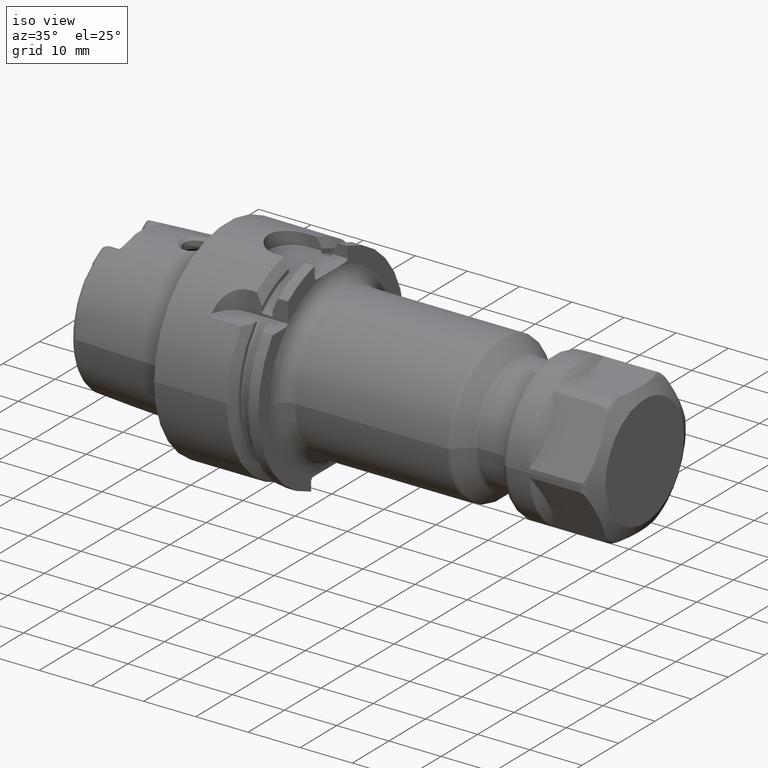
[diagram: clean part render]
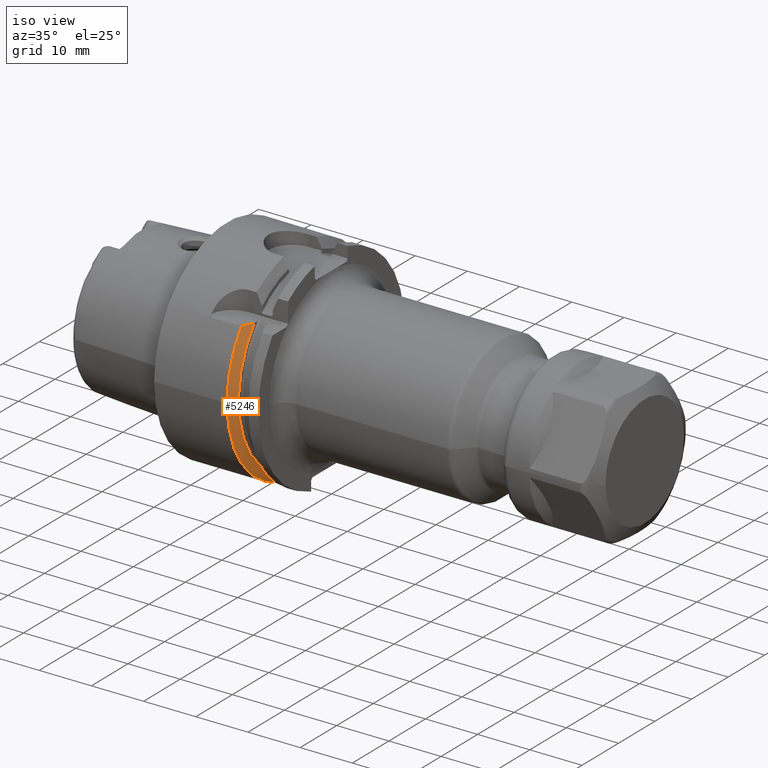
[diagram: same view with one face highlighted and labeled with its STEP entity id]
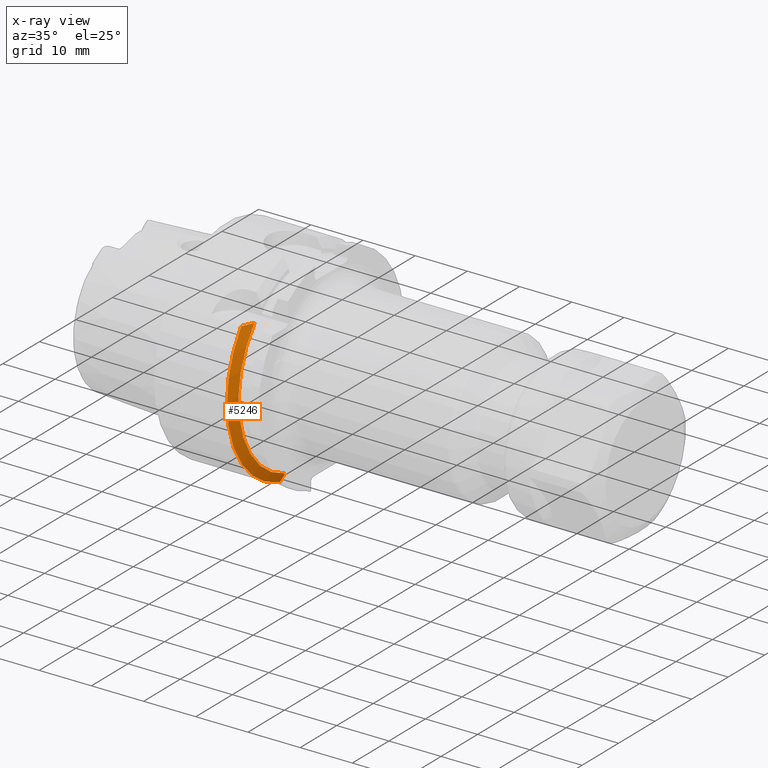
[diagram: x-ray of the same camera — body ghosted, the highlighted face saturated]
A machine part, iso view. The second image highlights one B-rep face of the part: STEP entity #5246.
The next image is the same camera in x-ray: the body ghosted, the highlighted face saturated — about 0% of this face is hidden behind the body in this view.
In plain terms, the highlighted conical surface has half-angle 60 deg.
Its self-contained STEP definition (entity closure, byte-faithful):
#954=CARTESIAN_POINT('',(1.396484030111E1,0.E0,0.E0));
#955=DIRECTION('',(1.E0,0.E0,0.E0));
#956=DIRECTION('',(0.E0,-8.055704500539E-1,5.925E-1));
#957=AXIS2_PLACEMENT_3D('',#954,#955,#956);
#1075=CARTESIAN_POINT('',(1.396484030111E1,0.E0,0.E0));
#1076=DIRECTION('',(1.E0,0.E0,0.E0));
#1077=DIRECTION('',(0.E0,-1.E0,0.E0));
#1078=AXIS2_PLACEMENT_3D('',#1075,#1076,#1077);
#1776=CARTESIAN_POINT('',(1.49625E1,-1.390839973320E1,1.185E1));
#1777=CARTESIAN_POINT('',(1.486171293392E1,-1.413773688651E1,1.185E1));
#1778=CARTESIAN_POINT('',(1.465350504648E1,-1.460672643476E1,1.185E1));
#1779=CARTESIAN_POINT('',(1.432145194433E1,-1.534021584423E1,1.185E1));
#1780=CARTESIAN_POINT('',(1.408602923523E1,-1.585084160911E1,1.185E1));
#1781=CARTESIAN_POINT('',(1.396484030111E1,-1.611140900108E1,1.185E1));
#1828=CARTESIAN_POINT('',(1.49625E1,0.E0,0.E0));
#1829=DIRECTION('',(1.E0,0.E0,0.E0));
#1830=DIRECTION('',(0.E0,-7.611863872709E-1,6.485331786682E-1));
#1831=AXIS2_PLACEMENT_3D('',#1828,#1829,#1830);
#1941=CARTESIAN_POINT('',(1.49625E1,-5.5175E0,-1.741904925329E1));
#1942=CARTESIAN_POINT('',(1.485605992557E1,-5.5175E0,-1.761243635328E1));
#1943=CARTESIAN_POINT('',(1.464023565105E1,-5.5175E0,-1.800397218698E1));
#1944=CARTESIAN_POINT('',(1.430775508931E1,-5.5175E0,-1.860543234989E1));
#1945=CARTESIAN_POINT('',(1.408013059396E1,-5.5175E0,-1.901611969665E1));
#1946=CARTESIAN_POINT('',(1.396484030111E1,-5.5175E0,-1.922387041545E1));
#2985=CARTESIAN_POINT('',(1.49625E1,-5.5175E0,-1.741904925329E1));
#2987=VERTEX_POINT('',#2985);
#2993=VERTEX_POINT('',#1946);
#3038=CARTESIAN_POINT('',(1.49625E1,-1.390839973320E1,1.185E1));
#3040=VERTEX_POINT('',#3038);
#3048=VERTEX_POINT('',#1781);
#3147=CARTESIAN_POINT('',(1.396484030111E1,-2.E1,0.E0));
#3148=VERTEX_POINT('',#3147);
#5233=CARTESIAN_POINT('',(1.446367015055E1,0.E0,0.E0));
#5234=DIRECTION('',(-1.E0,0.E0,0.E0));
#5235=DIRECTION('',(0.E0,1.E0,0.E0));
#5236=AXIS2_PLACEMENT_3D('',#5233,#5234,#5235);
#5237=CONICAL_SURFACE('',#5236,1.913600135643E1,6.E1);
#5238=ORIENTED_EDGE('',*,*,#4602,.T.);
#5240=ORIENTED_EDGE('',*,*,#5239,.T.);
#5241=ORIENTED_EDGE('',*,*,#4404,.F.);
#5242=ORIENTED_EDGE('',*,*,#4302,.F.);
#5243=ORIENTED_EDGE('',*,*,#5202,.F.);
#5244=EDGE_LOOP('',(#5238,#5240,#5241,#5242,#5243));
#5245=FACE_OUTER_BOUND('',#5244,.F.);
#5246=ADVANCED_FACE('',(#5245),#5237,.T.);
#958=CIRCLE('',#957,2.E1);
#1079=CIRCLE('',#1078,2.E1);
#1782=B_SPLINE_CURVE_WITH_KNOTS('',3,(#1776,#1777,#1778,#1779,#1780,#1781),
.UNSPECIFIED.,.F.,.F.,(4,1,1,4),(0.E0,3.333333333333E-1,6.666666666667E-1,1.E0),
.UNSPECIFIED.);
#1832=CIRCLE('',#1831,1.827200271285E1);
#1947=B_SPLINE_CURVE_WITH_KNOTS('',3,(#1941,#1942,#1943,#1944,#1945,#1946),
.UNSPECIFIED.,.F.,.F.,(4,1,1,4),(0.E0,3.333333333333E-1,6.666666666667E-1,1.E0),
.UNSPECIFIED.);
#4302=EDGE_CURVE('',#3048,#3148,#958,.T.);
#4404=EDGE_CURVE('',#3148,#2993,#1079,.T.);
#4602=EDGE_CURVE('',#3040,#2987,#1832,.T.);
#5202=EDGE_CURVE('',#3040,#3048,#1782,.T.);
#5239=EDGE_CURVE('',#2987,#2993,#1947,.T.);